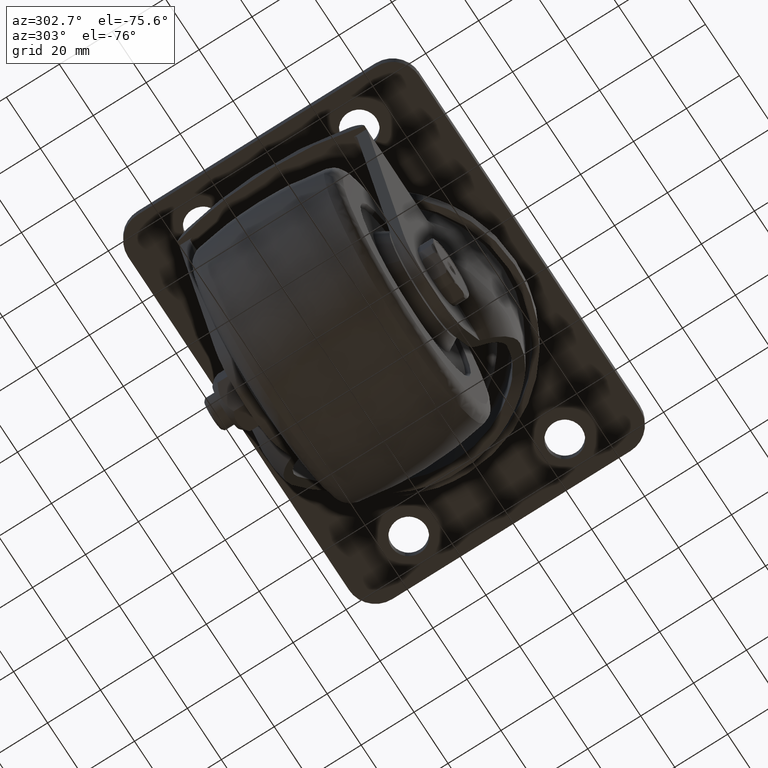
[diagram: clean part render]
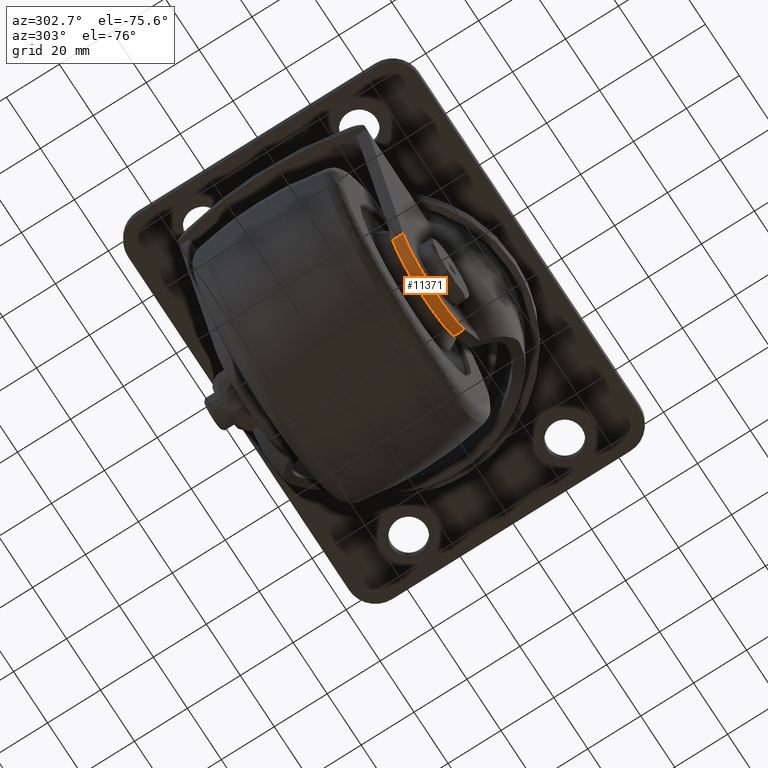
[diagram: same view with one face highlighted and labeled with its STEP entity id]
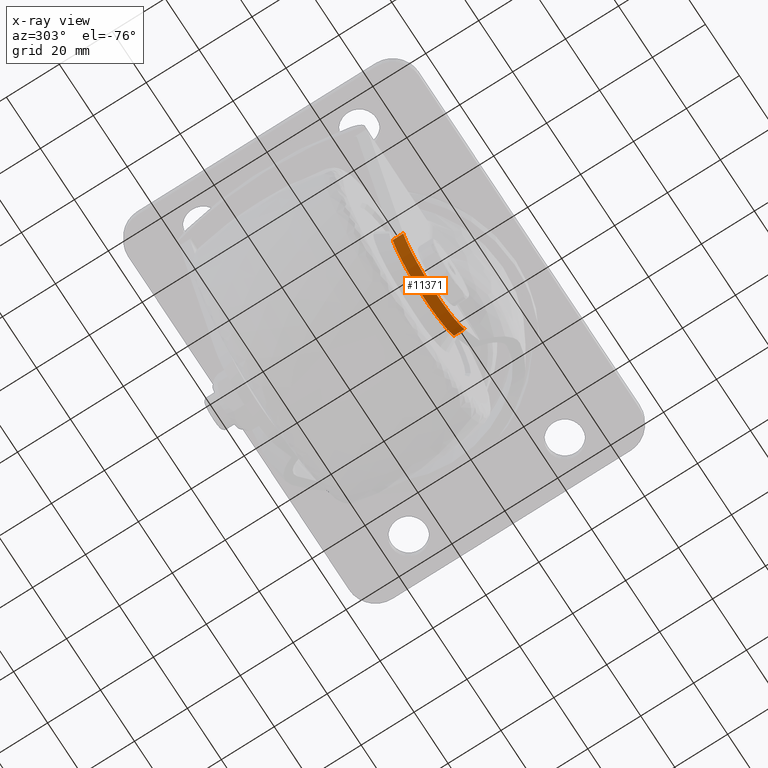
[diagram: x-ray of the same camera — body ghosted, the highlighted face saturated]
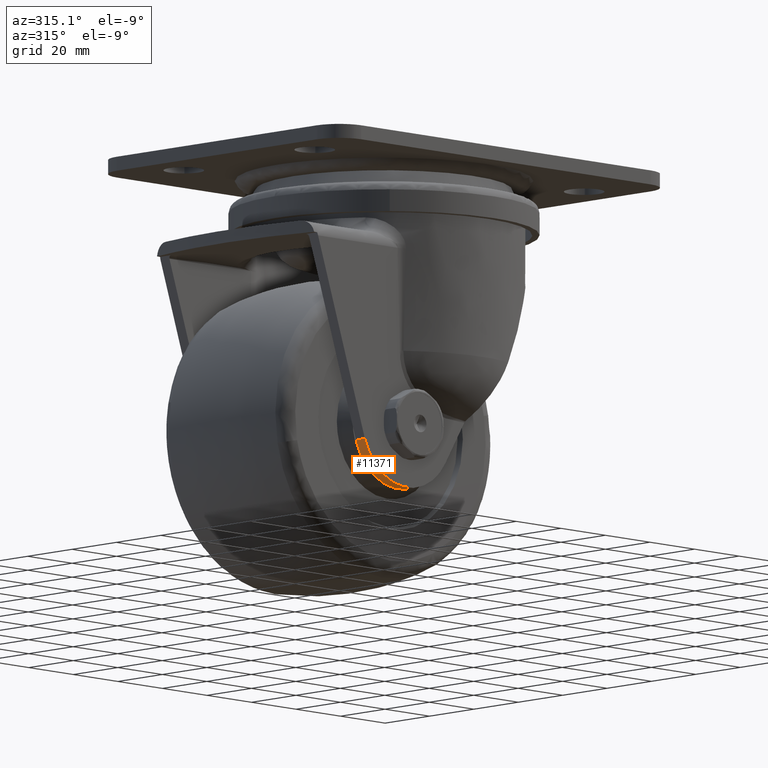
[diagram: same view with one face highlighted and labeled with its STEP entity id]
A machine part, auxiliary view. The second image highlights one B-rep face of the part: STEP entity #11371.
The next image is the same camera in x-ray: the body ghosted, the highlighted face saturated — about 0% of this face is hidden behind the body in this view.
A second angle (auxiliary view) of the same face is appended — the face is thin or edge-on in the first view.
In plain terms, the highlighted face is a freeform B-spline surface patch.
Its self-contained STEP definition (entity closure, byte-faithful):
#10987=CARTESIAN_POINT('',(-7.900707175428090,-31.499985000000049,-100.373725700033800));
#10988=VERTEX_POINT('',#10987);
#10994=CARTESIAN_POINT('',(-43.975829986240399,-31.499985000000049,-96.318059538600494));
#10995=VERTEX_POINT('',#10994);
#10996=CARTESIAN_POINT('',(-43.975829986240399,-31.499985000000049,-96.318059538600494));
#10997=CARTESIAN_POINT('',(-43.620331144813562,-31.499985000000191,-97.386037506958388));
#10998=CARTESIAN_POINT('',(-42.681423435007737,-31.499984999999850,-99.570939583078783));
#10999=CARTESIAN_POINT('',(-40.714494006238759,-31.499985000000041,-102.550210626241910));
#11000=CARTESIAN_POINT('',(-38.488512777580183,-31.499985000000319,-104.865365841905300));
#11001=CARTESIAN_POINT('',(-35.860182448819437,-31.499984999999981,-106.898837374235900));
#11002=CARTESIAN_POINT('',(-32.983505143359238,-31.499985000000098,-108.464850670375700));
#11003=CARTESIAN_POINT('',(-29.814721741019721,-31.499985000000009,-109.486335110675600));
#11004=CARTESIAN_POINT('',(-27.180099928010339,-31.499985000000169,-109.925686482095500));
#11005=CARTESIAN_POINT('',(-24.454504294572029,-31.499984999999398,-110.061518206768000));
#11006=CARTESIAN_POINT('',(-21.552638514898248,-31.499985000001711,-109.792521683548900));
#11007=CARTESIAN_POINT('',(-18.507160864794010,-31.499984999997800,-108.992623962571300));
#11008=CARTESIAN_POINT('',(-15.448153423534810,-31.499985000001899,-107.687057086839400));
#11009=CARTESIAN_POINT('',(-12.702657629087090,-31.499984999999661,-105.901010021215100));
#11010=CARTESIAN_POINT('',(-10.008446521933971,-31.499984999999299,-103.390933151601200));
#11011=CARTESIAN_POINT('',(-8.607273672804350,-31.499985000002411,-101.538755862181500));
#11012=CARTESIAN_POINT('',(-7.900707175428090,-31.499985000000049,-100.373725700033800));
#11013=B_SPLINE_CURVE_WITH_KNOTS('',3,(#10996,#10997,#10998,#10999,#11000,#11001,#11002,#11003,#11004,#11005,#11006,#11007,#11008,#11009,#11010,#11011,#11012),.UNSPECIFIED.,.F.,.U.,(4,1,1,1,1,1,1,1,1,1,1,1,1,1,4),(0.000000219688282,3.376771529408977,7.108959075912082,10.663492111954479,12.973931895842760,17.061639392856129,20.438402568229058,22.926444054363738,25.059195581199351,28.613696456233360,31.635003270985511,34.478624366802109,38.566335154390671,41.409959034174392,45.497565221593582),.UNSPECIFIED.);
#11014=EDGE_CURVE('',#10995,#10988,#11013,.T.);
#11109=CARTESIAN_POINT('',(-7.900707175428000,-35.500000000000000,-100.373725700033800));
#11110=VERTEX_POINT('',#11109);
#11119=CARTESIAN_POINT('',(-43.975829986240399,-35.500000000000000,-96.318059538600494));
#11120=VERTEX_POINT('',#11119);
#11126=CARTESIAN_POINT('',(-43.975829986240399,-35.500000000000000,-96.318059538600494));
#11127=CARTESIAN_POINT('',(-43.545552056948537,-35.500000000000007,-97.610898144857160));
#11128=CARTESIAN_POINT('',(-42.615127837671729,-35.500000000000050,-99.673688750819935));
#11129=CARTESIAN_POINT('',(-40.559696251437401,-35.499999999999957,-102.727581313609800));
#11130=CARTESIAN_POINT('',(-38.123566771354483,-35.500000000000277,-105.261642087689690));
#11131=CARTESIAN_POINT('',(-35.197614473018277,-35.500000000000092,-107.304572037630510));
#11132=CARTESIAN_POINT('',(-32.362709087006763,-35.499999999999822,-108.672666955890800));
#11133=CARTESIAN_POINT('',(-29.697637235695680,-35.500000000000121,-109.505792510068800));
#11134=CARTESIAN_POINT('',(-26.360452907076699,-35.499999999999957,-110.062726562417400));
#11135=CARTESIAN_POINT('',(-22.961454729653290,-35.500000000000007,-110.020356316443890));
#11136=CARTESIAN_POINT('',(-19.644915201745160,-35.500000000000043,-109.335653440412600));
#11137=CARTESIAN_POINT('',(-16.960078045277150,-35.499999999999773,-108.382188117622500));
#11138=CARTESIAN_POINT('',(-14.481984943321930,-35.500000000000689,-107.095325586231990));
#11139=CARTESIAN_POINT('',(-12.219263877625259,-35.499999999999268,-105.460668312677600));
#11140=CARTESIAN_POINT('',(-9.936612858781153,-35.500000000000057,-103.295937060858610));
#11141=CARTESIAN_POINT('',(-8.607265089667585,-35.500000000000959,-101.538766387204010));
#11142=CARTESIAN_POINT('',(-7.900707175428000,-35.500000000000000,-100.373725700033800));
#11143=B_SPLINE_CURVE_WITH_KNOTS('',3,(#11126,#11127,#11128,#11129,#11130,#11131,#11132,#11133,#11134,#11135,#11136,#11137,#11138,#11139,#11140,#11141,#11142),.UNSPECIFIED.,.F.,.U.,(4,1,1,1,1,1,1,1,1,1,1,1,1,1,4),(0.000000219720761,4.087656686293265,6.753530496907899,11.018940388638139,14.573448797286529,17.417051402028459,20.438402568237020,22.926444054370851,27.547293433321681,30.568673054127320,33.056819124029182,36.078166395442850,38.921761291009780,41.409959034173667,45.497565221593703),.UNSPECIFIED.);
#11144=EDGE_CURVE('',#11120,#11110,#11143,.T.);
#11306=CARTESIAN_POINT('',(-43.975829986240399,-31.499985000000049,-96.318059538600494));
#11307=CARTESIAN_POINT('',(-43.975829986240399,-35.500000000000000,-96.318059538600494));
#11308=QUASI_UNIFORM_CURVE('',1,(#11306,#11307),.UNSPECIFIED.,.F.,.U.);
#11309=EDGE_CURVE('',#10995,#11120,#11308,.T.);
#11343=CARTESIAN_POINT('',(-7.464486353572475,-31.399984625000052,-99.617991534408503));
#11344=CARTESIAN_POINT('',(-7.464486353572475,-35.602500384374999,-99.617991534408503));
#11345=CARTESIAN_POINT('',(-13.951903558449363,-31.399984625000052,-111.445844836130450));
#11346=CARTESIAN_POINT('',(-13.951903558449363,-35.602500384374999,-111.445844836130450));
#11347=CARTESIAN_POINT('',(-27.348727433177132,-31.399984625000052,-109.861608178710990));
#11348=CARTESIAN_POINT('',(-27.348727433177132,-35.602500384374999,-109.861608178710990));
#11349=CARTESIAN_POINT('',(-40.745551307904897,-31.399984625000052,-108.277371521291580));
#11350=CARTESIAN_POINT('',(-40.745551307904897,-35.602500384374999,-108.277371521291580));
#11351=CARTESIAN_POINT('',(-44.295211211637479,-31.399984625000052,-95.262587224768623));
#11352=CARTESIAN_POINT('',(-44.295211211637479,-35.602500384374999,-95.262587224768623));
#11360=(BOUNDED_SURFACE()B_SPLINE_SURFACE(1,2,((#11343,#11345,#11347,#11349,#11351),(#11344,#11346,#11348,#11350,#11352)),.UNSPECIFIED.,.F.,.F.,.U.)B_SPLINE_SURFACE_WITH_KNOTS((2,2),(3,2,3),(0.0,4.202515759374951),(0.0,24.458454516692790,48.916909033385572),.UNSPECIFIED.)GEOMETRIC_REPRESENTATION_ITEM()RATIONAL_B_SPLINE_SURFACE(((1.0,0.829037572555042,1.0,0.829037572555042,1.0),(1.0,0.829037572555042,1.0,0.829037572555042,1.0)))REPRESENTATION_ITEM('')SURFACE());
#11361=ORIENTED_EDGE('',*,*,#11014,.T.);
#11362=CARTESIAN_POINT('',(-7.900707175428090,-31.499985000000049,-100.373725700033800));
#11363=CARTESIAN_POINT('',(-7.900707175428000,-35.500000000000000,-100.373725700033800));
#11364=QUASI_UNIFORM_CURVE('',1,(#11362,#11363),.UNSPECIFIED.,.F.,.U.);
#11365=EDGE_CURVE('',#10988,#11110,#11364,.T.);
#11366=ORIENTED_EDGE('',*,*,#11365,.T.);
#11367=ORIENTED_EDGE('',*,*,#11144,.F.);
#11368=ORIENTED_EDGE('',*,*,#11309,.F.);
#11369=EDGE_LOOP('',(#11361,#11366,#11367,#11368));
#11370=FACE_OUTER_BOUND('',#11369,.T.);
#11371=ADVANCED_FACE('',(#11370),#11360,.T.);